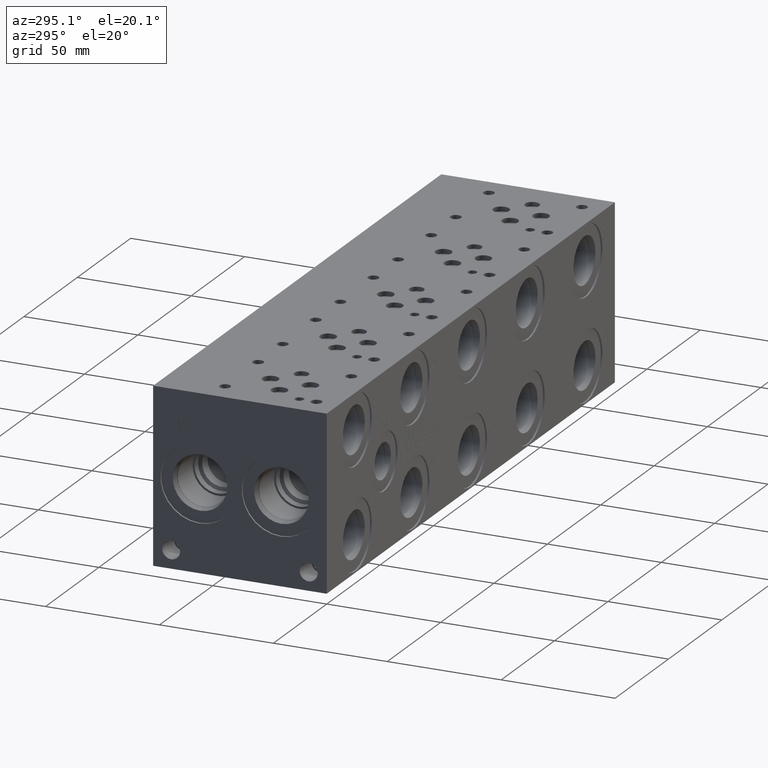
[diagram: clean part render]
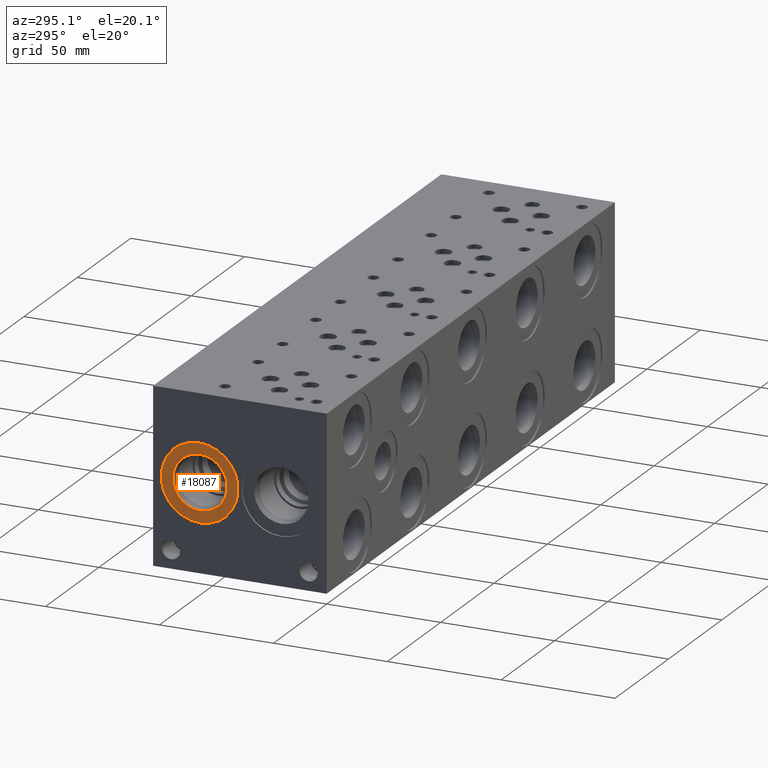
[diagram: same view with one face highlighted and labeled with its STEP entity id]
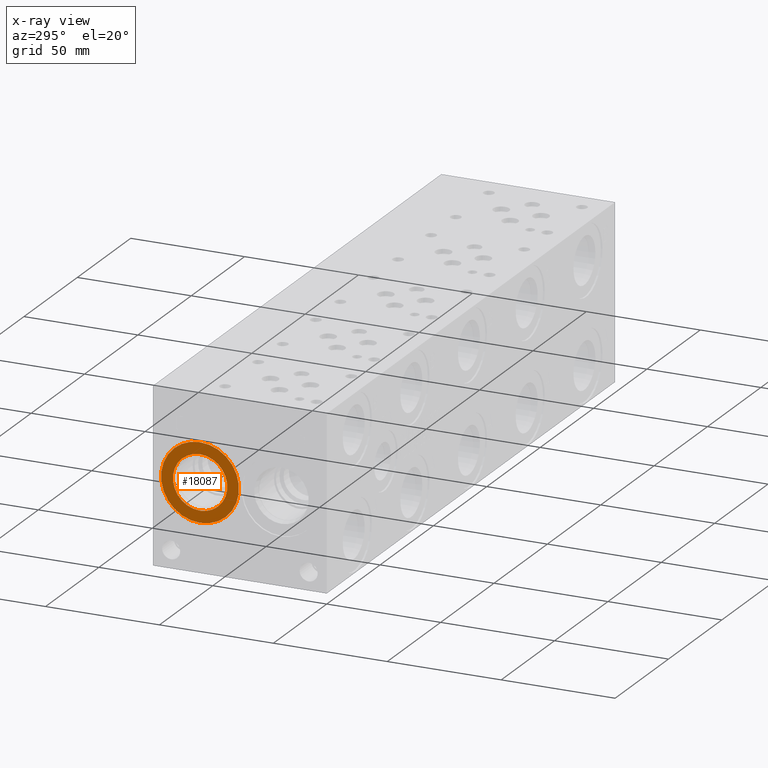
[diagram: x-ray of the same camera — body ghosted, the highlighted face saturated]
A machine part, auxiliary view. The second image highlights one B-rep face of the part: STEP entity #18087.
The next image is the same camera in x-ray: the body ghosted, the highlighted face saturated — about 0% of this face is hidden behind the body in this view.
In plain terms, the highlighted planar face has unit normal (1, 0, 0).
Its self-contained STEP definition (entity closure, byte-faithful):
#392=CIRCLE('',#18945,17.0688);
#393=CIRCLE('',#18946,17.0688);
#394=CIRCLE('',#18948,11.9507);
#395=CIRCLE('',#18949,11.9507);
#953=FACE_BOUND('',#3433,.T.);
#2387=FACE_OUTER_BOUND('',#3432,.T.);
#3432=EDGE_LOOP('',(#14880,#14881));
#3433=EDGE_LOOP('',(#14882,#14883));
#8131=VERTEX_POINT('',#30551);
#8132=VERTEX_POINT('',#30553);
#8133=VERTEX_POINT('',#30557);
#8134=VERTEX_POINT('',#30558);
#10518=EDGE_CURVE('',#8131,#8132,#392,.T.);
#10519=EDGE_CURVE('',#8132,#8131,#393,.T.);
#10520=EDGE_CURVE('',#8133,#8134,#394,.T.);
#10521=EDGE_CURVE('',#8134,#8133,#395,.T.);
#14880=ORIENTED_EDGE('',*,*,#10519,.F.);
#14881=ORIENTED_EDGE('',*,*,#10518,.F.);
#14882=ORIENTED_EDGE('',*,*,#10520,.T.);
#14883=ORIENTED_EDGE('',*,*,#10521,.T.);
#16759=PLANE('',#18947);
#18087=ADVANCED_FACE('',(#2387,#953),#16759,.F.);
#18945=AXIS2_PLACEMENT_3D('',#30554,#22120,#22121);
#18946=AXIS2_PLACEMENT_3D('',#30555,#22122,#22123);
#18947=AXIS2_PLACEMENT_3D('',#30556,#22124,#22125);
#18948=AXIS2_PLACEMENT_3D('',#30559,#22126,#22127);
#18949=AXIS2_PLACEMENT_3D('',#30560,#22128,#22129);
#22120=DIRECTION('center_axis',(1.,0.,0.));
#22121=DIRECTION('ref_axis',(0.,0.,-1.));
#22122=DIRECTION('center_axis',(1.,0.,0.));
#22123=DIRECTION('ref_axis',(0.,0.,-1.));
#22124=DIRECTION('center_axis',(1.,0.,0.));
#22125=DIRECTION('ref_axis',(0.,0.,-1.));
#22126=DIRECTION('center_axis',(1.,0.,0.));
#22127=DIRECTION('ref_axis',(0.,0.,-1.));
#22128=DIRECTION('center_axis',(1.,0.,0.));
#22129=DIRECTION('ref_axis',(0.,0.,-1.));
#30551=CARTESIAN_POINT('',(0.7874,55.9562,21.0312));
#30553=CARTESIAN_POINT('',(0.7874,55.9562,55.1688));
#30554=CARTESIAN_POINT('Origin',(0.7874,55.9562,38.1));
#30555=CARTESIAN_POINT('Origin',(0.7874,55.9562,38.1));
#30556=CARTESIAN_POINT('Origin',(0.7874,55.9562,50.0507));
#30557=CARTESIAN_POINT('',(0.7874,55.9562,50.0507));
#30558=CARTESIAN_POINT('',(0.787399999999999,55.9562,26.1493));
#30559=CARTESIAN_POINT('Origin',(0.7874,55.9562,38.1));
#30560=CARTESIAN_POINT('Origin',(0.7874,55.9562,38.1));